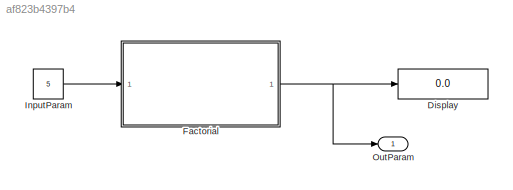
MODEL slx_af823b4397b4
KIND model
CONFIG AbsTol = auto
CONFIG EnableMultiTasking = off
CONFIG FixedStep = auto
CONFIG MaxStep = auto
CONFIG MinStep = auto
CONFIG RelTol = 1e-3
CONFIG SampleTimeConstraint = Unconstrained
CONFIG Solver = FixedStepDiscrete
CONFIG SolverName = FixedStepDiscrete
CONFIG StartTime = 0.0
CONFIG StopTime = 10.0
BLOCK [Display] Display
  Decimation = 1
  Ports = [1]
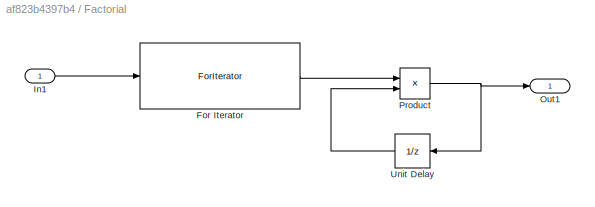
BLOCK [SubSystem] Factorial
  Ports = [1, 1]
  RequestExecContextInheritance = off
  TreatAsAtomicUnit = on
  Variant = off
BLOCK [ForIterator] Factorial/For Iterator
  IterationSource = external
  Ports = [1, 1]
  ResetStates = reset
BLOCK [Inport] Factorial/In1
  IconDisplay = Port number
BLOCK [Outport] Factorial/Out1
  IconDisplay = Port number
BLOCK [Product] Factorial/Product
  InputSameDT = off
  OutDataTypeStr = int32
  Ports = [2, 1]
  RndMeth = Floor
  SaturateOnIntegerOverflow = off
BLOCK [UnitDelay] Factorial/Unit Delay
  InitialCondition = 1
  InputProcessing = Elements as channels (sample based)
  SampleTime = -1
BLOCK [Constant] InputParam
  Value = 5
BLOCK [Outport] OutParam
  IconDisplay = Port number
LINE Factorial/For Iterator:1 -> Factorial/Product:1
LINE Factorial/In1:1 -> Factorial/For Iterator:1
NET Factorial/Product:1 -> Factorial/Out1:1, Factorial/Unit Delay:1
LINE Factorial/Unit Delay:1 -> Factorial/Product:2
NET Factorial:1 -> Display:1, OutParam:1
LINE InputParam:1 -> Factorial:1
note: NET lines group one-source signal fan-out (src -> all destinations, sorted); 1:1 wires keep LINE
